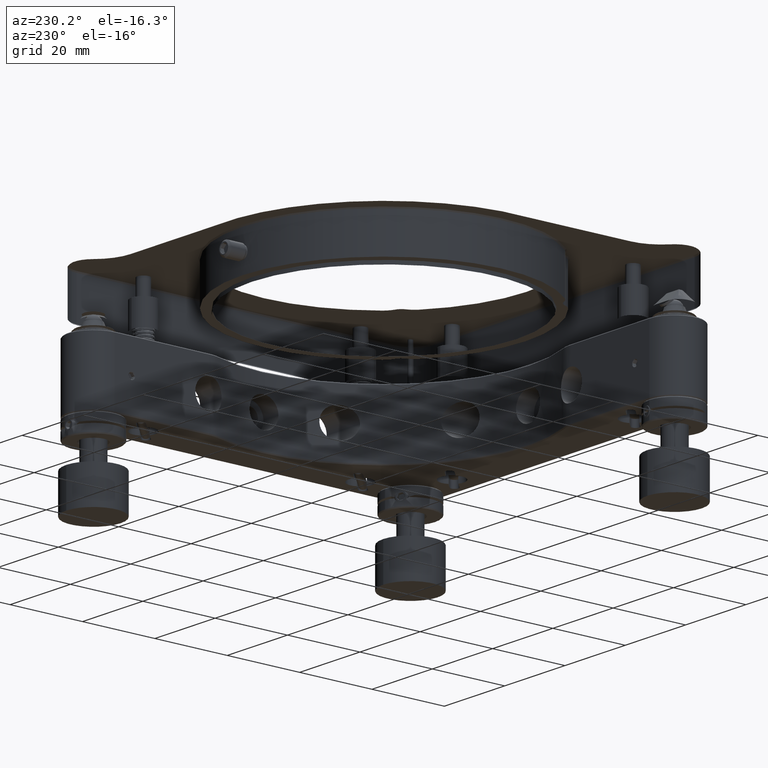
[diagram: clean part render]
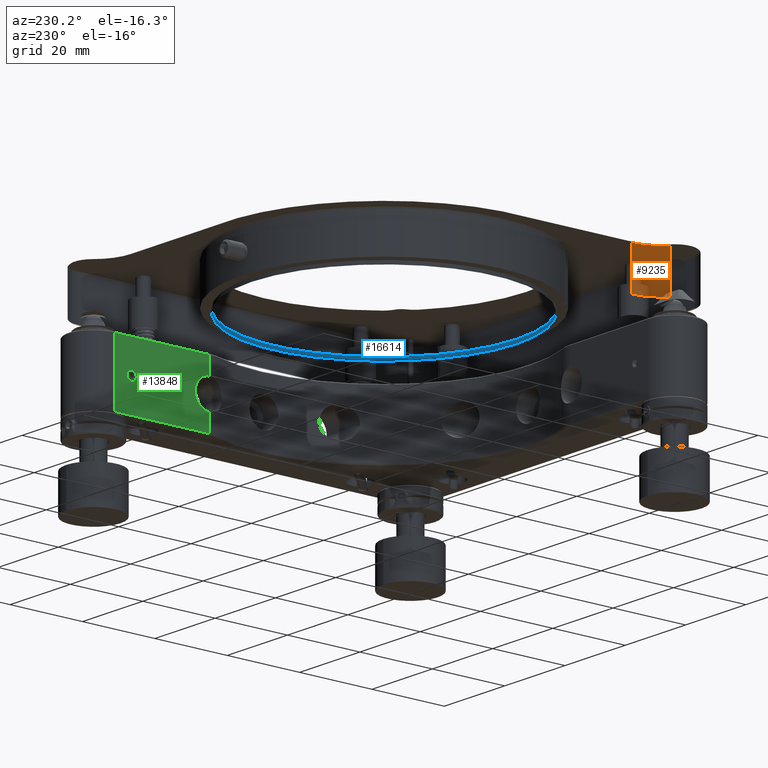
[diagram: same view with three faces highlighted in distinct colors, each labeled with its STEP entity id]
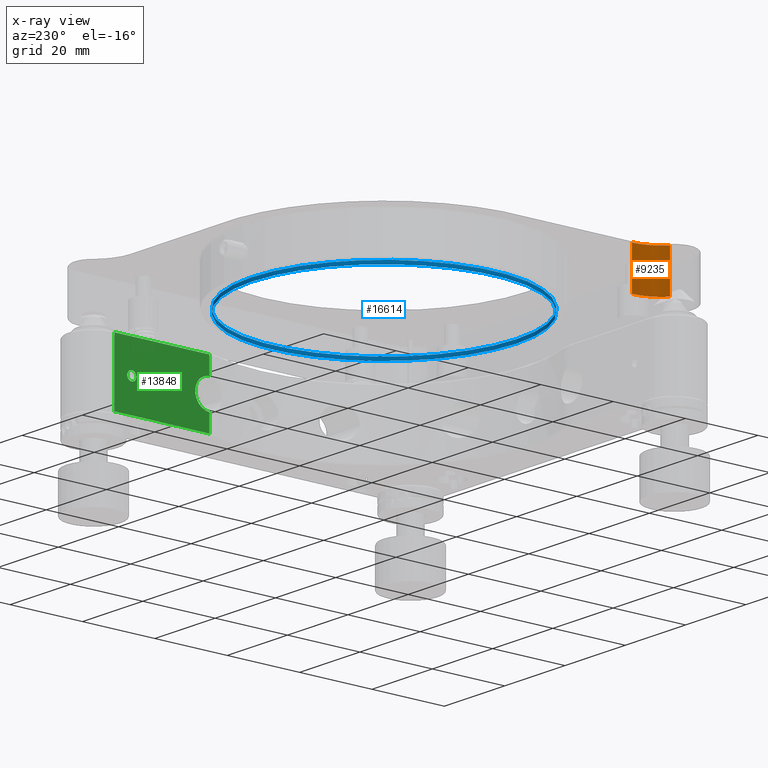
[diagram: x-ray of the same camera — body ghosted, the three highlighted faces saturated]
A machine part, auxiliary view with three faces highlighted in distinct colors.
The next image is the same camera in x-ray (body ghosted, the three faces saturated) — at least one of them is partly hidden behind the body in this view.
Their STEP definitions:

[orange] entity #9235 — the highlighted cylindrical surface (partial cylindrical patch) has radius 10 mm, axis along (0, -0, 1).
#75 = CIRCLE ( 'NONE', #5998, 10.00000000000000178 ) ;
#285 = CARTESIAN_POINT ( 'NONE',  ( -53.79999999999999716, -31.95728071767304357, 13.29999999999998295 ) ) ;
#599 = VERTEX_POINT ( 'NONE', #12557 ) ;
#1434 = EDGE_CURVE ( 'NONE', #10183, #16579, #75, .T. ) ;
#2081 = EDGE_CURVE ( 'NONE', #12280, #10183, #2991, .T. ) ;
#2419 = ORIENTED_EDGE ( 'NONE', *, *, #10398, .T. ) ;
#2582 = CARTESIAN_POINT ( 'NONE',  ( -47.34838709676458279, -39.59774477077914412, 12.99999999999999822 ) ) ;
#2863 = CARTESIAN_POINT ( 'NONE',  ( -53.79999999999999716, -31.95728071767304357, 24.70000000000001350 ) ) ;
#2991 = LINE ( 'NONE', #15369, #10537 ) ;
#3945 = CARTESIAN_POINT ( 'NONE',  ( -53.79999999999999716, -31.95728071767304357, 12.99999999999999822 ) ) ;
#4748 = ORIENTED_EDGE ( 'NONE', *, *, #2081, .T. ) ;
#5082 = CARTESIAN_POINT ( 'NONE',  ( -43.79999999999999005, -31.95728071767304357, 24.70000000000000995 ) ) ;
#5267 = FACE_OUTER_BOUND ( 'NONE', #15738, .T. ) ;
#5685 = DIRECTION ( 'NONE',  ( -8.420987747460221792E-17, 1.684197549492046084E-16, -1.000000000000000000 ) ) ;
#5974 = CARTESIAN_POINT ( 'NONE',  ( -47.34838709674445312, -39.59774477078001098, 24.69999999999893703 ) ) ;
#5998 = AXIS2_PLACEMENT_3D ( 'NONE', #2863, #14983, #8251 ) ;
#6068 = CARTESIAN_POINT ( 'NONE',  ( -43.79999999999998295, -31.95728071767303646, 13.29999999999998650 ) ) ;
#6290 = ORIENTED_EDGE ( 'NONE', *, *, #1434, .T. ) ;
#7224 = DIRECTION ( 'NONE',  ( 1.137208903880104210E-16, -1.216571513026822848E-16, 1.000000000000000000 ) ) ;
#7982 = DIRECTION ( 'NONE',  ( -1.137208903880104210E-16, 1.216571513026822848E-16, -1.000000000000000000 ) ) ;
#8094 = DIRECTION ( 'NONE',  ( 1.137208903880104210E-16, -1.216571513026822848E-16, 1.000000000000000000 ) ) ;
#8251 = DIRECTION ( 'NONE',  ( 6.938893903907227392E-16, -1.000000000000000000, 0.000000000000000000 ) ) ;
#8379 = CIRCLE ( 'NONE', #16867, 10.00000000000000533 ) ;
#8617 = ORIENTED_EDGE ( 'NONE', *, *, #8758, .F. ) ;
#8758 = EDGE_CURVE ( 'NONE', #12280, #599, #8379, .T. ) ;
#9235 = ADVANCED_FACE ( 'NONE', ( #5267 ), #11816, .T. ) ;
#9746 = DIRECTION ( 'NONE',  ( 0.000000000000000000, 1.000000000000000000, 1.734723475976806108E-16 ) ) ;
#10183 = VERTEX_POINT ( 'NONE', #5082 ) ;
#10398 = EDGE_CURVE ( 'NONE', #16579, #599, #14705, .T. ) ;
#10537 = VECTOR ( 'NONE', #7224, 1000.000000000000000 ) ;
#11816 = CYLINDRICAL_SURFACE ( 'NONE', #13753, 10.00000000000000178 ) ;
#12280 = VERTEX_POINT ( 'NONE', #6068 ) ;
#12557 = CARTESIAN_POINT ( 'NONE',  ( -47.34838709678623303, -39.59774477077389321, 13.29999999999006910 ) ) ;
#13753 = AXIS2_PLACEMENT_3D ( 'NONE', #3945, #8094, #14913 ) ;
#14329 = VECTOR ( 'NONE', #7982, 1000.000000000000000 ) ;
#14705 = LINE ( 'NONE', #2582, #14329 ) ;
#14913 = DIRECTION ( 'NONE',  ( 0.000000000000000000, -1.000000000000000000, -1.734723475976806848E-16 ) ) ;
#14983 = DIRECTION ( 'NONE',  ( -1.137208903880104210E-16, 1.216571513026822848E-16, -1.000000000000000000 ) ) ;
#15369 = CARTESIAN_POINT ( 'NONE',  ( -43.79999999999999005, -31.95728071767304357, 12.99999999999999645 ) ) ;
#15738 = EDGE_LOOP ( 'NONE', ( #4748, #6290, #2419, #8617 ) ) ;
#16579 = VERTEX_POINT ( 'NONE', #5974 ) ;
#16867 = AXIS2_PLACEMENT_3D ( 'NONE', #285, #5685, #9746 ) ;

[blue] entity #16614 — the highlighted cylindrical surface (bore or boss wall) has radius 36.6 mm, axis along (0, -0, 1).
#20 = EDGE_CURVE ( 'NONE', #16193, #16193, #14512, .T. ) ;
#311 = ORIENTED_EDGE ( 'NONE', *, *, #15797, .F. ) ;
#1046 = DIRECTION ( 'NONE',  ( -1.137208903880104210E-16, 1.216571513026822848E-16, -1.000000000000000000 ) ) ;
#1377 = DIRECTION ( 'NONE',  ( 0.000000000000000000, -1.000000000000000000, -1.421904488505579408E-16 ) ) ;
#2176 = EDGE_LOOP ( 'NONE', ( #8827 ) ) ;
#2909 = CARTESIAN_POINT ( 'NONE',  ( 1.399062011682461803E-14, -36.59999999999996589, 13.99999999999998934 ) ) ;
#6510 = CIRCLE ( 'NONE', #8487, 36.60000000000000142 ) ;
#7084 = AXIS2_PLACEMENT_3D ( 'NONE', #14283, #11810, #15703 ) ;
#7450 = CARTESIAN_POINT ( 'NONE',  ( 1.387689922643660611E-14, -36.59999999999996589, 12.99999999999999112 ) ) ;
#7827 = CYLINDRICAL_SURFACE ( 'NONE', #7084, 36.60000000000000142 ) ;
#8487 = AXIS2_PLACEMENT_3D ( 'NONE', #13495, #16162, #1377 ) ;
#8797 = FACE_OUTER_BOUND ( 'NONE', #14980, .T. ) ;
#8827 = ORIENTED_EDGE ( 'NONE', *, *, #20, .T. ) ;
#10280 = VERTEX_POINT ( 'NONE', #7450 ) ;
#11476 = DIRECTION ( 'NONE',  ( 0.000000000000000000, -1.000000000000000000, -1.421904488505579408E-16 ) ) ;
#11810 = DIRECTION ( 'NONE',  ( 1.137208903880104210E-16, -1.216571513026822848E-16, 1.000000000000000000 ) ) ;
#11832 = CARTESIAN_POINT ( 'NONE',  ( 1.399062011682461803E-14, 3.151058718248609952E-14, 13.99999999999999467 ) ) ;
#13224 = FACE_OUTER_BOUND ( 'NONE', #2176, .T. ) ;
#13495 = CARTESIAN_POINT ( 'NONE',  ( 1.387689922643660611E-14, 3.163224433378877729E-14, 12.99999999999999645 ) ) ;
#14283 = CARTESIAN_POINT ( 'NONE',  ( 1.387689922643660611E-14, 3.163224433378877729E-14, 12.99999999999999645 ) ) ;
#14512 = CIRCLE ( 'NONE', #15636, 36.60000000000000142 ) ;
#14980 = EDGE_LOOP ( 'NONE', ( #311 ) ) ;
#15636 = AXIS2_PLACEMENT_3D ( 'NONE', #11832, #1046, #11476 ) ;
#15703 = DIRECTION ( 'NONE',  ( 0.000000000000000000, -1.000000000000000000, -1.421904488505579408E-16 ) ) ;
#15797 = EDGE_CURVE ( 'NONE', #10280, #10280, #6510, .T. ) ;
#16162 = DIRECTION ( 'NONE',  ( -1.137208903880104210E-16, 1.216571513026822848E-16, -1.000000000000000000 ) ) ;
#16193 = VERTEX_POINT ( 'NONE', #2909 ) ;
#16614 = ADVANCED_FACE ( 'NONE', ( #13224, #8797 ), #7827, .T. ) ;

[green] entity #13848 — the highlighted planar face has unit normal (1, -0, 0).
#19 = LINE ( 'NONE', #5422, #2785 ) ;
#50 = EDGE_CURVE ( 'NONE', #10161, #6437, #10145, .T. ) ;
#198 = DIRECTION ( 'NONE',  ( -0.000000000000000000, -0.000000000000000000, -1.000000000000000000 ) ) ;
#233 = CARTESIAN_POINT ( 'NONE',  ( 36.80000000000001137, 37.86076689320010047, 0.3856389984881575250 ) ) ;
#238 = EDGE_CURVE ( 'NONE', #8698, #9212, #14727, .T. ) ;
#296 = ORIENTED_EDGE ( 'NONE', *, *, #238, .F. ) ;
#315 = CARTESIAN_POINT ( 'NONE',  ( 36.80000000000001137, 38.72053798554743054, -1.207031902993922490 ) ) ;
#399 = CARTESIAN_POINT ( 'NONE',  ( 36.80000000000000426, 38.22698550196476219, 0.9448049200640106227 ) ) ;
#487 = AXIS2_PLACEMENT_3D ( 'NONE', #977, #10442, #2390 ) ;
#504 = CARTESIAN_POINT ( 'NONE',  ( 36.80000000000000426, 43.80000000000000426, -9.000000000000003553 ) ) ;
#529 = VERTEX_POINT ( 'NONE', #7881 ) ;
#796 = CARTESIAN_POINT ( 'NONE',  ( 36.80000000000000426, 39.64652461719341403, -1.100119322145175049 ) ) ;
#884 = CARTESIAN_POINT ( 'NONE',  ( 36.80000000000001847, 40.05562143336999981, -0.7620405893269233122 ) ) ;
#977 = CARTESIAN_POINT ( 'NONE',  ( 36.80000000000001137, 17.50000000000001421, 2.143131898507868248E-15 ) ) ;
#1003 = EDGE_CURVE ( 'NONE', #6118, #10161, #15105, .T. ) ;
#1190 = CARTESIAN_POINT ( 'NONE',  ( 36.80000000000734417, 43.80000000000000426, 8.749999999992775557 ) ) ;
#1566 = CARTESIAN_POINT ( 'NONE',  ( 36.80000000000000426, 37.80006730190073228, -0.1586042252477213588 ) ) ;
#1733 = CARTESIAN_POINT ( 'NONE',  ( 36.79999999999999716, 37.89506989257701974, -0.4785488709737864554 ) ) ;
#1777 = CARTESIAN_POINT ( 'NONE',  ( 36.80000000000001847, 39.99480492006322407, 0.8230144980373260699 ) ) ;
#2358 = EDGE_LOOP ( 'NONE', ( #6133, #5648, #7491, #4287, #4744, #10892 ) ) ;
#2390 = DIRECTION ( 'NONE',  ( 0.000000000000000000, 0.000000000000000000, 1.000000000000000000 ) ) ;
#2785 = VECTOR ( 'NONE', #198, 1000.000000000000000 ) ;
#2800 = LINE ( 'NONE', #4308, #16634 ) ;
#2848 = CARTESIAN_POINT ( 'NONE',  ( 36.79999999999999716, 39.24644242615577383, 1.239029422040992534 ) ) ;
#2932 = CARTESIAN_POINT ( 'NONE',  ( 36.80000000000001137, 40.20493010742299589, 0.4785488709736882562 ) ) ;
#2974 = CARTESIAN_POINT ( 'NONE',  ( 36.80000000000000426, 37.87984794906372343, 0.4400971163225721461 ) ) ;
#2984 = FACE_BOUND ( 'NONE', #6782, .T. ) ;
#3100 = CARTESIAN_POINT ( 'NONE',  ( 36.80000000000001137, 39.67028855198422832, 1.098901979465666701 ) ) ;
#3142 = CARTESIAN_POINT ( 'NONE',  ( 36.80000000000000426, 38.73749602809079562, 1.220745125442666890 ) ) ;
#3153 = FACE_OUTER_BOUND ( 'NONE', #2358, .T. ) ;
#3228 = CARTESIAN_POINT ( 'NONE',  ( 36.80000000000000426, 38.45347538281255595, 1.100119322148734424 ) ) ;
#3329 = DIRECTION ( 'NONE',  ( 1.000000000000000000, -0.000000000000000000, 0.000000000000000000 ) ) ;
#3362 = CARTESIAN_POINT ( 'NONE',  ( 36.80000000000001847, 40.14890197946584749, -0.6202885519829373084 ) ) ;
#3364 = AXIS2_PLACEMENT_3D ( 'NONE', #15450, #3329, #7310 ) ;
#3541 = CARTESIAN_POINT ( 'NONE',  ( 36.79999999999999716, 39.55000645838750017, -1.145850069176155506 ) ) ;
#3775 = ORIENTED_EDGE ( 'NONE', *, *, #8163, .F. ) ;
#4122 = EDGE_CURVE ( 'NONE', #529, #16186, #11815, .T. ) ;
#4287 = ORIENTED_EDGE ( 'NONE', *, *, #10820, .F. ) ;
#4307 = CARTESIAN_POINT ( 'NONE',  ( 36.79999999999999716, 38.02471000977021731, -0.7243921280098646331 ) ) ;
#4308 = CARTESIAN_POINT ( 'NONE',  ( 36.80000000000000426, 50.80000000000000426, -8.750000000000010658 ) ) ;
#4394 = CARTESIAN_POINT ( 'NONE',  ( 36.80000000000000426, 37.94988067785162400, -0.5965246171889023730 ) ) ;
#4477 = CARTESIAN_POINT ( 'NONE',  ( 36.80000000000002558, 38.10519507993627286, -0.8230144980363442997 ) ) ;
#4488 = PLANE ( 'NONE',  #3364 ) ;
#4521 = CARTESIAN_POINT ( 'NONE',  ( 36.80000000000001137, 39.81204058932316059, 1.005621433374876306 ) ) ;
#4744 = ORIENTED_EDGE ( 'NONE', *, *, #13011, .F. ) ;
#4777 = CARTESIAN_POINT ( 'NONE',  ( 36.80000000000000426, 39.87301449803977960, -0.9448049200613025667 ) ) ;
#4860 = CARTESIAN_POINT ( 'NONE',  ( 36.80000000000000426, 39.20913117626272282, -1.249999999999987121 ) ) ;
#4915 = VECTOR ( 'NONE', #14551, 1000.000000000000000 ) ;
#5422 = CARTESIAN_POINT ( 'NONE',  ( 36.80000000000001847, 17.59999999999998721, -9.000000000000003553 ) ) ;
#5630 = CARTESIAN_POINT ( 'NONE',  ( 36.79999999999999005, 38.32560787199204810, 1.025289990230242809 ) ) ;
#5648 = ORIENTED_EDGE ( 'NONE', *, *, #12608, .F. ) ;
#5711 = CARTESIAN_POINT ( 'NONE',  ( 36.80000000000000426, 37.82932247243165591, -0.3126745147807266645 ) ) ;
#5855 = CIRCLE ( 'NONE', #487, 3.999999999999994671 ) ;
#5899 = DIRECTION ( 'NONE',  ( -0.000000000000000000, -0.000000000000000000, 1.000000000000000000 ) ) ;
#5909 = CARTESIAN_POINT ( 'NONE',  ( 36.80000000000000426, 17.59999999999999076, -8.750000000000010658 ) ) ;
#6118 = VERTEX_POINT ( 'NONE', #12831 ) ;
#6133 = ORIENTED_EDGE ( 'NONE', *, *, #1003, .F. ) ;
#6437 = VERTEX_POINT ( 'NONE', #13870 ) ;
#6782 = EDGE_LOOP ( 'NONE', ( #3775, #296 ) ) ;
#6951 = CARTESIAN_POINT ( 'NONE',  ( 36.80000000000001137, 38.60990288367690226, -1.170152050935949761 ) ) ;
#7117 = CARTESIAN_POINT ( 'NONE',  ( 36.80000000000000426, 38.04437856662102035, 0.7620405893215058679 ) ) ;
#7208 = CARTESIAN_POINT ( 'NONE',  ( 36.80000000000001137, 38.89086882374157739, 1.249999999999987121 ) ) ;
#7264 = CARTESIAN_POINT ( 'NONE',  ( 36.80000000000000426, 39.05000000000001847, -1.249999999999987121 ) ) ;
#7310 = DIRECTION ( 'NONE',  ( 0.000000000000000000, 0.000000000000000000, -1.000000000000000000 ) ) ;
#7491 = ORIENTED_EDGE ( 'NONE', *, *, #4122, .F. ) ;
#7516 = CARTESIAN_POINT ( 'NONE',  ( 36.80000000000000426, 39.36250397191350459, -1.220745125442667112 ) ) ;
#7654 = CARTESIAN_POINT ( 'NONE',  ( 36.80000000000000426, 39.05000000000001847, 1.249999999999987121 ) ) ;
#7690 = CARTESIAN_POINT ( 'NONE',  ( 36.79999999999999716, 39.77439212801586876, -1.025289990225503267 ) ) ;
#7881 = CARTESIAN_POINT ( 'NONE',  ( 36.80000000000001137, 17.59999999999999076, -3.998749804626435367 ) ) ;
#8163 = EDGE_CURVE ( 'NONE', #9212, #8698, #10863, .T. ) ;
#8277 = CARTESIAN_POINT ( 'NONE',  ( 36.80000000000000426, 38.97061278412154905, -1.249999999999987121 ) ) ;
#8325 = CARTESIAN_POINT ( 'NONE',  ( 36.80000000000000426, 40.27067752756837393, 0.3126745147815284120 ) ) ;
#8399 = VERTEX_POINT ( 'NONE', #10924 ) ;
#8450 = CARTESIAN_POINT ( 'NONE',  ( 36.80000000000002558, 38.42971144801396122, -1.098901979464646406 ) ) ;
#8623 = CARTESIAN_POINT ( 'NONE',  ( 36.80000000000000426, 38.57142981116728464, 1.154921657688697145 ) ) ;
#8668 = CARTESIAN_POINT ( 'NONE',  ( 36.80000000000001137, 40.23923310679992227, -0.3856389984872425902 ) ) ;
#8698 = VERTEX_POINT ( 'NONE', #7264 ) ;
#9158 = CARTESIAN_POINT ( 'NONE',  ( 36.80000000000000426, 17.59999999999999076, -9.000000000000003553 ) ) ;
#9212 = VERTEX_POINT ( 'NONE', #7654 ) ;
#9653 = CARTESIAN_POINT ( 'NONE',  ( 36.80000000000001847, 40.19585006917705527, 0.5000064583863440548 ) ) ;
#9781 = CARTESIAN_POINT ( 'NONE',  ( 36.80000000000001137, 37.84292393013376454, 0.3293503164308969611 ) ) ;
#9822 = CARTESIAN_POINT ( 'NONE',  ( 36.80000000000000426, 39.05000000000001847, 1.249999999999987121 ) ) ;
#9867 = CARTESIAN_POINT ( 'NONE',  ( 36.80000000000000426, 39.05000000000001847, -1.249999999999987121 ) ) ;
#9909 = CARTESIAN_POINT ( 'NONE',  ( 36.79999999999999716, 40.07528999022881067, 0.7243921280115810379 ) ) ;
#9948 = CARTESIAN_POINT ( 'NONE',  ( 36.80000000000001137, 38.66428919564079081, -1.189204713810555925 ) ) ;
#10145 = LINE ( 'NONE', #15550, #13666 ) ;
#10161 = VERTEX_POINT ( 'NONE', #1190 ) ;
#10343 = CARTESIAN_POINT ( 'NONE',  ( 36.80000000000001137, 39.58897966702781446, -1.128102625123912350 ) ) ;
#10442 = DIRECTION ( 'NONE',  ( -1.000000000000000000, -0.000000000000000000, -0.000000000000000000 ) ) ;
#10820 = EDGE_CURVE ( 'NONE', #8399, #529, #5855, .T. ) ;
#10863 = B_SPLINE_CURVE_WITH_KNOTS ( 'NONE', 3,
 ( #9822, #16734, #2848, #10987, #11240, #16645, #15221, #3100, #4521, #1777, #9909, #16390, #11327, #9653, #2932, #8325, #11498, #13001, #11414, #12827, #8668, #12914, #14410, #3362, #884, #4777, #7690, #796, #10343, #3541, #15658, #7516, #4860, #15400 ),
 .UNSPECIFIED., .F., .F.,
 ( 4, 1, 1, 2, 2, 2, 1, 1, 2, 2, 2, 1, 1, 2, 2, 2, 1, 1, 2, 2, 4 ),
 ( 0.000000000000000000, 0.06249999999999732159, 0.09374999999999598932, 0.1093749999999926725, 0.1249999999999893557, 0.2499999999999865108, 0.3124999999999851230, 0.3437499999999857891, 0.3593749999999861777, 0.3749999999999865108, 0.4999999999999874545, 0.5624999999999878986, 0.5937499999999881206, 0.6093749999999890088, 0.6249999999999898970, 0.7499999999999948930, 0.8124999999999974465, 0.8437499999999986677, 0.8593749999999993339, 0.8750000000000000000, 1.000000000000000000 ),
 .UNSPECIFIED. ) ;
#10892 = ORIENTED_EDGE ( 'NONE', *, *, #50, .F. ) ;
#10924 = CARTESIAN_POINT ( 'NONE',  ( 36.80000000000001137, 17.59999999999999076, 3.998749804626439364 ) ) ;
#10943 = DIRECTION ( 'NONE',  ( 0.000000000000000000, 1.000000000000000000, 0.000000000000000000 ) ) ;
#10987 = CARTESIAN_POINT ( 'NONE',  ( 36.80000000000001847, 39.37946201445216587, 1.207031902993922712 ) ) ;
#11024 = CARTESIAN_POINT ( 'NONE',  ( 36.80000000000001137, 38.51102033297603811, 1.128102625126199632 ) ) ;
#11107 = CARTESIAN_POINT ( 'NONE',  ( 36.79999999999999005, 37.81091168879590469, 0.1962934954607992999 ) ) ;
#11194 = CARTESIAN_POINT ( 'NONE',  ( 36.80000000000000426, 38.54999354161464709, 1.145850069177427599 ) ) ;
#11240 = CARTESIAN_POINT ( 'NONE',  ( 36.80000000000001137, 39.43571080435896903, 1.189204713810555702 ) ) ;
#11327 = CARTESIAN_POINT ( 'NONE',  ( 36.80000000000001137, 40.17810262512550423, 0.5389796670257313016 ) ) ;
#11414 = CARTESIAN_POINT ( 'NONE',  ( 36.80000000000000426, 40.28908831120411094, -0.1962934954588990422 ) ) ;
#11498 = CARTESIAN_POINT ( 'NONE',  ( 36.80000000000001847, 40.29993269809928336, 0.1586042252455512336 ) ) ;
#11815 = LINE ( 'NONE', #9158, #4915 ) ;
#12353 = CARTESIAN_POINT ( 'NONE',  ( 36.80000000000001137, 37.79996634904969000, 0.07930211262386090143 ) ) ;
#12434 = CARTESIAN_POINT ( 'NONE',  ( 36.80000000000001137, 38.85355757384363784, -1.239029422040992756 ) ) ;
#12607 = CARTESIAN_POINT ( 'NONE',  ( 36.80000000000000426, 39.05000000000001847, 1.249999999999987121 ) ) ;
#12608 = EDGE_CURVE ( 'NONE', #16186, #6118, #2800, .T. ) ;
#12827 = CARTESIAN_POINT ( 'NONE',  ( 36.80000000000000426, 40.25707606986625109, -0.3293503164294764862 ) ) ;
#12831 = CARTESIAN_POINT ( 'NONE',  ( 36.80000000000000426, 43.80000000000001137, -8.749999999997738698 ) ) ;
#12914 = CARTESIAN_POINT ( 'NONE',  ( 36.80000000000001847, 40.22642148007470553, -0.4230013043509175397 ) ) ;
#13001 = CARTESIAN_POINT ( 'NONE',  ( 36.80000000000001137, 40.30003365095035406, -0.07930211262277567230 ) ) ;
#13011 = EDGE_CURVE ( 'NONE', #6437, #8399, #19, .T. ) ;
#13066 = DIRECTION ( 'NONE',  ( -0.000000000000000000, -1.000000000000000000, 0.000000000000000000 ) ) ;
#13666 = VECTOR ( 'NONE', #13066, 1000.000000000000000 ) ;
#13678 = CARTESIAN_POINT ( 'NONE',  ( 36.79999999999999716, 38.62695880349798472, -1.176405706191727241 ) ) ;
#13848 = ADVANCED_FACE ( 'NONE', ( #2984, #3153 ), #4488, .F. ) ;
#13870 = CARTESIAN_POINT ( 'NONE',  ( 36.80000000000152482, 17.59999999999998010, 8.750000000001502798 ) ) ;
#14226 = VECTOR ( 'NONE', #5899, 1000.000000000000000 ) ;
#14410 = CARTESIAN_POINT ( 'NONE',  ( 36.80000000000000426, 40.22015205093580192, -0.4400971163235121719 ) ) ;
#14551 = DIRECTION ( 'NONE',  ( 0.000000000000000000, 0.000000000000000000, -1.000000000000000000 ) ) ;
#14727 = B_SPLINE_CURVE_WITH_KNOTS ( 'NONE', 3,
 ( #9867, #8277, #12434, #315, #9948, #13678, #6951, #8450, #15349, #4477, #4307, #4394, #15093, #16428, #1733, #5711, #1566, #12353, #11107, #9781, #233, #15263, #2974, #15176, #7117, #399, #5630, #3228, #11024, #11194, #8623, #3142, #7208, #12607 ),
 .UNSPECIFIED., .F., .F.,
 ( 4, 1, 1, 2, 2, 2, 1, 1, 2, 2, 2, 1, 1, 2, 2, 2, 1, 1, 2, 2, 4 ),
 ( 0.000000000000000000, 0.06249999999998737121, 0.09374999999998107070, 0.1093749999999805711, 0.1249999999999800715, 0.2499999999999761302, 0.3124999999999759082, 0.3437499999999772404, 0.3593749999999779066, 0.3749999999999785727, 0.4999999999999819034, 0.5624999999999835687, 0.5937499999999843459, 0.6093749999999840128, 0.6249999999999835687, 0.7499999999999826805, 0.8124999999999839018, 0.8437499999999844569, 0.8593749999999871214, 0.8749999999999896749, 1.000000000000000000 ),
 .UNSPECIFIED. ) ;
#15093 = CARTESIAN_POINT ( 'NONE',  ( 36.80000000000000426, 37.92189737487403534, -0.5389796670249016319 ) ) ;
#15105 = LINE ( 'NONE', #504, #14226 ) ;
#15176 = CARTESIAN_POINT ( 'NONE',  ( 36.80000000000000426, 37.95109802053809744, 0.6202885519904577372 ) ) ;
#15221 = CARTESIAN_POINT ( 'NONE',  ( 36.80000000000000426, 39.49009711632336916, 1.170152050935819865 ) ) ;
#15263 = CARTESIAN_POINT ( 'NONE',  ( 36.80000000000001137, 37.87357851992531721, 0.4230013043514250226 ) ) ;
#15349 = CARTESIAN_POINT ( 'NONE',  ( 36.80000000000001137, 38.28795941067800612, -1.005621433376840068 ) ) ;
#15400 = CARTESIAN_POINT ( 'NONE',  ( 36.80000000000000426, 39.05000000000001847, -1.249999999999987121 ) ) ;
#15450 = CARTESIAN_POINT ( 'NONE',  ( 36.80000000000000426, 50.80000000000000426, -9.000000000000003553 ) ) ;
#15550 = CARTESIAN_POINT ( 'NONE',  ( 36.80000000000605098, 50.80000000000000426, 8.750000000006043166 ) ) ;
#15658 = CARTESIAN_POINT ( 'NONE',  ( 36.80000000000000426, 39.52857018883220519, -1.154921657688696923 ) ) ;
#16186 = VERTEX_POINT ( 'NONE', #5909 ) ;
#16390 = CARTESIAN_POINT ( 'NONE',  ( 36.80000000000000426, 40.15011932214766688, 0.5965246171901894545 ) ) ;
#16428 = CARTESIAN_POINT ( 'NONE',  ( 36.80000000000000426, 37.90414993082271167, -0.5000064583858830902 ) ) ;
#16634 = VECTOR ( 'NONE', #10943, 1000.000000000000000 ) ;
#16645 = CARTESIAN_POINT ( 'NONE',  ( 36.80000000000001137, 39.47304119650186038, 1.176405706191727907 ) ) ;
#16734 = CARTESIAN_POINT ( 'NONE',  ( 36.80000000000000426, 39.12938721587815394, 1.249999999999987121 ) ) ;